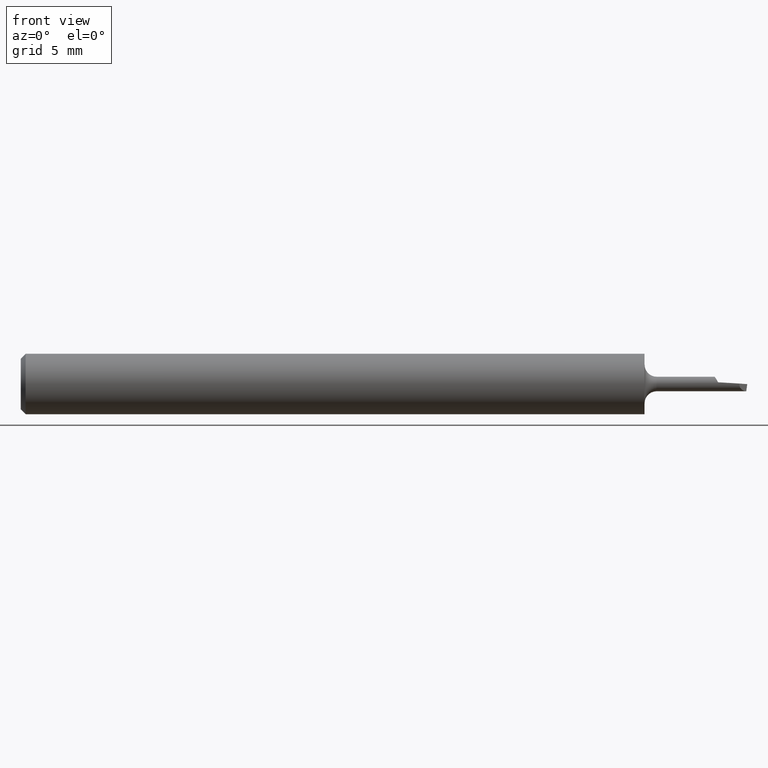
[diagram: clean part render]
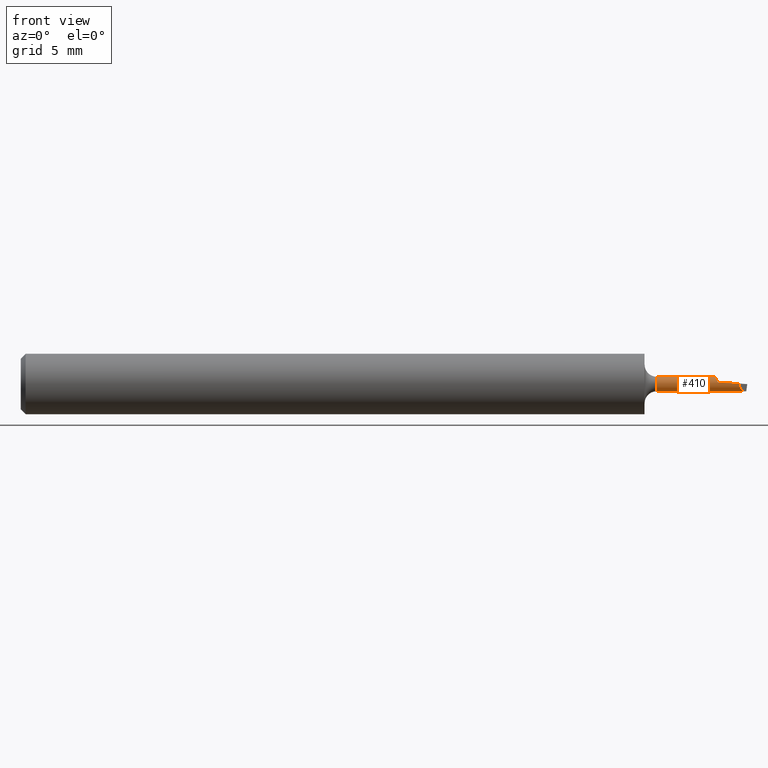
[diagram: same view with one face highlighted and labeled with its STEP entity id]
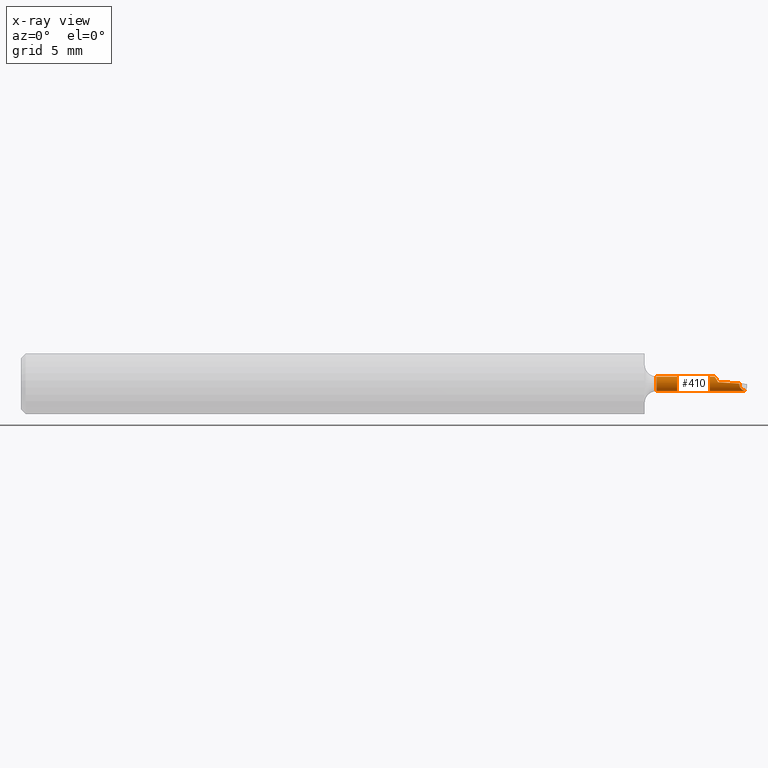
[diagram: x-ray of the same camera — body ghosted, the highlighted face saturated]
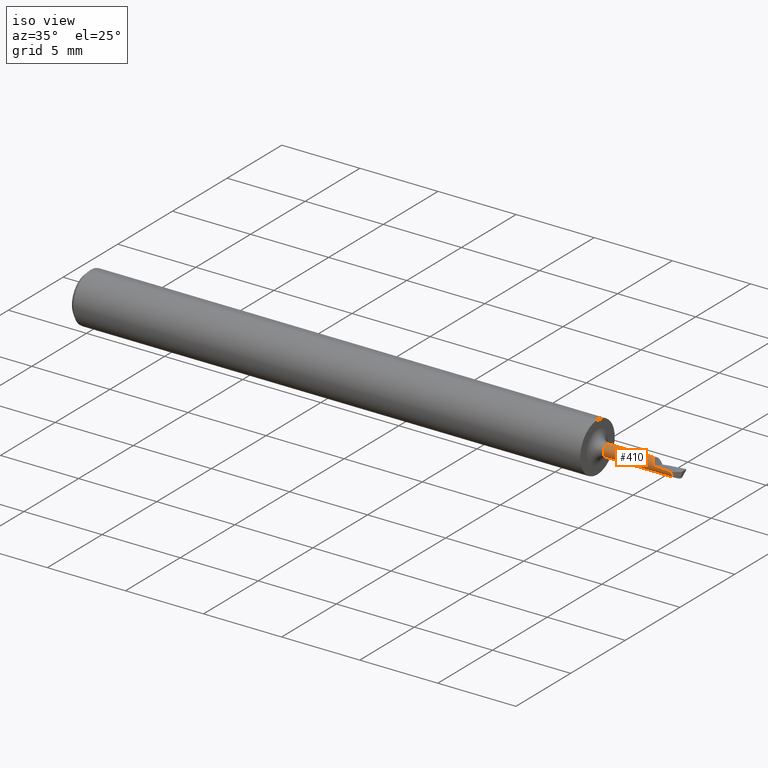
[diagram: same view with one face highlighted and labeled with its STEP entity id]
A machine part, front view. The second image highlights one B-rep face of the part: STEP entity #410.
The next image is the same camera in x-ray: the body ghosted, the highlighted face saturated — about 0% of this face is hidden behind the body in this view.
A second angle (iso view) of the same face is appended — the face is thin or edge-on in the first view.
In plain terms, the highlighted cylindrical surface (edge-blend (fillet) strip) has radius 0.381 mm, axis along (-1, -0, -0).
Its self-contained STEP definition (entity closure, byte-faithful):
#17 = CARTESIAN_POINT ( 'NONE',  ( 1.498003259551602628, 0.000000000000000000, -0.01500000000000003240 ) ) ;
#25 = EDGE_CURVE ( 'NONE', #55, #347, #605, .T. ) ;
#34 = EDGE_CURVE ( 'NONE', #629, #347, #378, .T. ) ;
#37 = CARTESIAN_POINT ( 'NONE',  ( 1.435048143572538626, -0.009211310455437949837, 0.01183963071279994263 ) ) ;
#44 = CARTESIAN_POINT ( 'NONE',  ( 1.483529953433141202, -0.01496977584811517471, 0.0009517410662662855163 ) ) ;
#47 = CARTESIAN_POINT ( 'NONE',  ( 1.433809783495058054, -0.006452718478155158345, 0.01357158033387893467 ) ) ;
#55 = VERTEX_POINT ( 'NONE', #718 ) ;
#74 = EDGE_CURVE ( 'NONE', #217, #507, #313, .T. ) ;
#76 = VERTEX_POINT ( 'NONE', #439 ) ;
#81 = CYLINDRICAL_SURFACE ( 'NONE', #435, 0.01500000000000003240 ) ;
#101 = CARTESIAN_POINT ( 'NONE',  ( 1.432754109844076140, -0.003186430497608945880, 0.01475888696545138087 ) ) ;
#118 = ORIENTED_EDGE ( 'NONE', *, *, #130, .T. ) ;
#120 = CARTESIAN_POINT ( 'NONE',  ( 1.452880678092314914, 4.001730459469135574E-19, -0.01500000000000003240 ) ) ;
#128 = ORIENTED_EDGE ( 'NONE', *, *, #208, .T. ) ;
#130 = EDGE_CURVE ( 'NONE', #587, #160, #303, .T. ) ;
#136 = CARTESIAN_POINT ( 'NONE',  ( 1.482959009056721511, -0.01554072022453476844, -0.008028547417331043448 ) ) ;
#147 = DIRECTION ( 'NONE',  ( 1.000000000000000000, -0.000000000000000000, -0.000000000000000000 ) ) ;
#149 = VECTOR ( 'NONE', #147, 39.37007874015748143 ) ;
#150 = CARTESIAN_POINT ( 'NONE',  ( 1.439818867927538326, -0.01455439994882645575, 0.003628972599735443439 ) ) ;
#160 = VERTEX_POINT ( 'NONE', #456 ) ;
#168 = LINE ( 'NONE', #628, #325 ) ;
#174 = CARTESIAN_POINT ( 'NONE',  ( 1.483529953433141202, -0.01496977584811517645, 0.0009517410662662855163 ) ) ;
#177 = EDGE_CURVE ( 'NONE', #587, #217, #168, .T. ) ;
#207 = ORIENTED_EDGE ( 'NONE', *, *, #515, .T. ) ;
#208 = EDGE_CURVE ( 'NONE', #656, #536, #688, .T. ) ;
#209 = AXIS2_PLACEMENT_3D ( 'NONE', #316, #725, #269 ) ;
#210 = CARTESIAN_POINT ( 'NONE',  ( 1.436168963713213342, -0.01131927870987984447, 0.01016358373328416810 ) ) ;
#217 = VERTEX_POINT ( 'NONE', #694 ) ;
#222 = DIRECTION ( 'NONE',  ( -1.000000000000000000, -0.000000000000000000, -0.000000000000000000 ) ) ;
#224 = CARTESIAN_POINT ( 'NONE',  ( 1.433518398743692135, -0.005637682489700022483, 0.01392699023799098823 ) ) ;
#230 = DIRECTION ( 'NONE',  ( 0.000000000000000000, 0.000000000000000000, -1.000000000000000000 ) ) ;
#240 = ORIENTED_EDGE ( 'NONE', *, *, #296, .T. ) ;
#245 = CARTESIAN_POINT ( 'NONE',  ( 1.450960253075775919, -0.0002167109636360160384, -0.01499882324169561805 ) ) ;
#254 = FACE_OUTER_BOUND ( 'NONE', #500, .T. ) ;
#263 = CARTESIAN_POINT ( 'NONE',  ( 1.497999920531684737, -0.0004998087495719157362, -0.01499167072790263261 ) ) ;
#269 = DIRECTION ( 'NONE',  ( 0.000000000000000000, 0.000000000000000000, 1.000000000000000000 ) ) ;
#281 = CARTESIAN_POINT ( 'NONE',  ( 1.432391071050306941, -0.001547547568372051492, 0.01499954651350355987 ) ) ;
#283 = ORIENTED_EDGE ( 'NONE', *, *, #356, .T. ) ;
#296 = EDGE_CURVE ( 'NONE', #76, #507, #301, .T. ) ;
#301 = LINE ( 'NONE', #641, #667 ) ;
#303 = CIRCLE ( 'NONE', #511, 0.01500000000000003240 ) ;
#313 = CIRCLE ( 'NONE', #209, 0.01500000000000006710 ) ;
#316 = CARTESIAN_POINT ( 'NONE',  ( 1.313000000000000167, 0.000000000000000000, 0.000000000000000000 ) ) ;
#325 = VECTOR ( 'NONE', #559, 39.37007874015748143 ) ;
#346 = CARTESIAN_POINT ( 'NONE',  ( 1.461876997276741807, -0.01488347263640724463, 0.002309189830464820296 ) ) ;
#347 = VERTEX_POINT ( 'NONE', #17 ) ;
#356 = EDGE_CURVE ( 'NONE', #160, #629, #563, .T. ) ;
#367 = ORIENTED_EDGE ( 'NONE', *, *, #682, .F. ) ;
#368 = DIRECTION ( 'NONE',  ( 0.000000000000000000, 0.000000000000000000, 1.000000000000000000 ) ) ;
#378 = LINE ( 'NONE', #609, #149 ) ;
#410 = ADVANCED_FACE ( 'NONE', ( #254 ), #81, .T. ) ;
#418 = CARTESIAN_POINT ( 'NONE',  ( 1.450000000000000178, -0.0003246776874453487422, -0.01499648573497391196 ) ) ;
#423 = CARTESIAN_POINT ( 'NONE',  ( 1.483529953433141202, -0.01496977584811517645, 0.0009517410662662855163 ) ) ;
#435 = AXIS2_PLACEMENT_3D ( 'NONE', #486, #720, #368 ) ;
#437 = CARTESIAN_POINT ( 'NONE',  ( 1.434474952013649718, -0.008038547935960361351, 0.01267274973122393261 ) ) ;
#439 = CARTESIAN_POINT ( 'NONE',  ( 1.432172176270926522, -4.678262273230738979E-06, 0.01500437916576863491 ) ) ;
#456 = CARTESIAN_POINT ( 'NONE',  ( 1.450000000000000178, -0.0003246776874453487422, -0.01499648573497391196 ) ) ;
#460 = CARTESIAN_POINT ( 'NONE',  ( 1.439818867927538326, -0.01455439994882645575, 0.003628972599735443439 ) ) ;
#479 = CARTESIAN_POINT ( 'NONE',  ( 1.497999920531684737, -0.0004998087495719157362, -0.01499167072790263261 ) ) ;
#486 = CARTESIAN_POINT ( 'NONE',  ( 0.000000000000000000, 0.000000000000000000, 0.000000000000000000 ) ) ;
#493 = CARTESIAN_POINT ( 'NONE',  ( 1.434748423254414540, -0.008616488997697981794, 0.01228048561823972228 ) ) ;
#500 = EDGE_LOOP ( 'NONE', ( #744, #118, #283, #614, #516, #367, #128, #207, #240, #648 ) ) ;
#506 = CARTESIAN_POINT ( 'NONE',  ( 1.452880678092314914, 4.001730459469135574E-19, -0.01500000000000003240 ) ) ;
#507 = VERTEX_POINT ( 'NONE', #666 ) ;
#511 = AXIS2_PLACEMENT_3D ( 'NONE', #619, #222, #230 ) ;
#515 = EDGE_CURVE ( 'NONE', #536, #76, #571, .T. ) ;
#516 = ORIENTED_EDGE ( 'NONE', *, *, #25, .F. ) ;
#527 = CARTESIAN_POINT ( 'NONE',  ( 1.489006497426780706, -0.009493231854475954815, -0.01469183813165527396 ) ) ;
#536 = VERTEX_POINT ( 'NONE', #689 ) ;
#549 = CARTESIAN_POINT ( 'NONE',  ( 1.437736881882000661, -0.01358371587181051582, 0.007522050208257274016 ) ) ;
#559 = DIRECTION ( 'NONE',  ( -1.000000000000000000, -0.000000000000000000, -0.000000000000000000 ) ) ;
#563 = B_SPLINE_CURVE_WITH_KNOTS ( 'NONE', 3,
 ( #418, #245, #653, #120 ),
 .UNSPECIFIED., .F., .F.,
 ( 4, 4 ),
 ( 0.000000000000000000, 7.363255510218438165E-05 ),
 .UNSPECIFIED. ) ;
#571 = B_SPLINE_CURVE_WITH_KNOTS ( 'NONE', 3,
 ( #150, #549, #210, #37, #717, #657, #493, #437, #672, #47, #224, #101, #281, #743 ),
 .UNSPECIFIED., .F., .F.,
 ( 4, 2, 2, 2, 2, 2, 4 ),
 ( 0.000000000000000000, 0.4664418517735915981, 0.4955944675094387519, 0.5247470832452858502, 0.5830523147169912601, 0.6996627776604134041, 0.9328837035472578032 ),
 .UNSPECIFIED. ) ;
#587 = VERTEX_POINT ( 'NONE', #693 ) ;
#595 = CARTESIAN_POINT ( 'NONE',  ( 1.498001805293502242, -0.0001666414726750670616, -0.01500000000000003414 ) ) ;
#605 =( BOUNDED_CURVE ( )  B_SPLINE_CURVE ( 3, ( #263, #668, #595, #665 ),
 .UNSPECIFIED., .F., .T. ) 
 B_SPLINE_CURVE_WITH_KNOTS ( ( 4, 4 ),
 ( 0.03762587081820473189, 0.07095262296442346461 ),
 .UNSPECIFIED. ) 
 CURVE ( )  GEOMETRIC_REPRESENTATION_ITEM ( )  RATIONAL_B_SPLINE_CURVE ( ( 1.000000000000000000, 0.9999074461075837528, 0.9999074461075837528, 1.000000000000000000 ) ) 
 REPRESENTATION_ITEM ( '' )  );
#609 = CARTESIAN_POINT ( 'NONE',  ( 1.440000000000000169, 0.000000000000000000, -0.01500000000000003240 ) ) ;
#614 = ORIENTED_EDGE ( 'NONE', *, *, #34, .T. ) ;
#619 = CARTESIAN_POINT ( 'NONE',  ( 1.450000000000000178, 0.000000000000000000, 0.000000000000000000 ) ) ;
#628 = CARTESIAN_POINT ( 'NONE',  ( 0.000000000000000000, 1.836970198721033832E-18, -0.01500000000000003240 ) ) ;
#629 = VERTEX_POINT ( 'NONE', #506 ) ;
#638 = DIRECTION ( 'NONE',  ( -1.000000000000000000, -0.000000000000000000, -0.000000000000000000 ) ) ;
#641 = CARTESIAN_POINT ( 'NONE',  ( 0.000000000000000000, 0.000000000000000000, 0.01500000000000003240 ) ) ;
#648 = ORIENTED_EDGE ( 'NONE', *, *, #74, .F. ) ;
#653 = CARTESIAN_POINT ( 'NONE',  ( 1.451920480153344739, -0.0001084811731242212105, -0.01500000000000003240 ) ) ;
#656 = VERTEX_POINT ( 'NONE', #174 ) ;
#657 = CARTESIAN_POINT ( 'NONE',  ( 1.434860371873333484, -0.008843257154775263987, 0.01211693456127935914 ) ) ;
#665 = CARTESIAN_POINT ( 'NONE',  ( 1.498003259551602628, 0.000000000000000000, -0.01500000000000003240 ) ) ;
#666 = CARTESIAN_POINT ( 'NONE',  ( 1.313000000000000167, 0.000000000000000000, 0.01500000000000006710 ) ) ;
#667 = VECTOR ( 'NONE', #638, 39.37007874015748143 ) ;
#668 = CARTESIAN_POINT ( 'NONE',  ( 1.498000692183840021, -0.0003332598103747386967, -0.01499722331897492683 ) ) ;
#672 = CARTESIAN_POINT ( 'NONE',  ( 1.434301793299346484, -0.007645811330956290772, 0.01291309069203553511 ) ) ;
#682 = EDGE_CURVE ( 'NONE', #656, #55, #738, .T. ) ;
#688 =( BOUNDED_CURVE ( )  B_SPLINE_CURVE ( 2, ( #44, #346, #460 ),
 .UNSPECIFIED., .F., .T. ) 
 B_SPLINE_CURVE_WITH_KNOTS ( ( 3, 3 ),
 ( 0.06685295215275710579, 0.2391423232655986442 ),
 .UNSPECIFIED. ) 
 CURVE ( )  GEOMETRIC_REPRESENTATION_ITEM ( )  RATIONAL_B_SPLINE_CURVE ( ( 0.9796418532850699190, 0.9711484298156731754, 0.9706449062946387318 ) ) 
 REPRESENTATION_ITEM ( '' )  );
#689 = CARTESIAN_POINT ( 'NONE',  ( 1.439818867927538326, -0.01455439994882645575, 0.003628972599735443439 ) ) ;
#693 = CARTESIAN_POINT ( 'NONE',  ( 1.450000000000000178, 1.836970198721033832E-18, -0.01500000000000003240 ) ) ;
#694 = CARTESIAN_POINT ( 'NONE',  ( 1.313000000000000167, 1.836970198721037684E-18, -0.01500000000000006710 ) ) ;
#717 = CARTESIAN_POINT ( 'NONE',  ( 1.434984216994094064, -0.009088010973427941216, 0.01193446089334006602 ) ) ;
#718 = CARTESIAN_POINT ( 'NONE',  ( 1.497999920531684737, -0.0004998087495719157362, -0.01499167072790263261 ) ) ;
#720 = DIRECTION ( 'NONE',  ( -1.000000000000000000, -0.000000000000000000, -0.000000000000000000 ) ) ;
#725 = DIRECTION ( 'NONE',  ( -1.000000000000000000, -0.000000000000000000, -0.000000000000000000 ) ) ;
#738 =( BOUNDED_CURVE ( )  B_SPLINE_CURVE ( 3, ( #423, #136, #527, #479 ),
 .UNSPECIFIED., .F., .T. ) 
 B_SPLINE_CURVE_WITH_KNOTS ( ( 4, 4 ),
 ( 6.219693252730760236, 7.820654881828270177 ),
 .UNSPECIFIED. ) 
 CURVE ( )  GEOMETRIC_REPRESENTATION_ITEM ( )  RATIONAL_B_SPLINE_CURVE ( ( 1.000000000000000000, 0.7975744757213796277, 0.7975744757213796277, 1.000000000000000000 ) ) 
 REPRESENTATION_ITEM ( '' )  );
#743 = CARTESIAN_POINT ( 'NONE',  ( 1.432172176270926522, -4.678262273230738979E-06, 0.01500437916576863491 ) ) ;
#744 = ORIENTED_EDGE ( 'NONE', *, *, #177, .F. ) ;